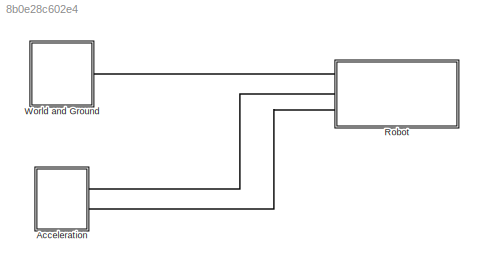
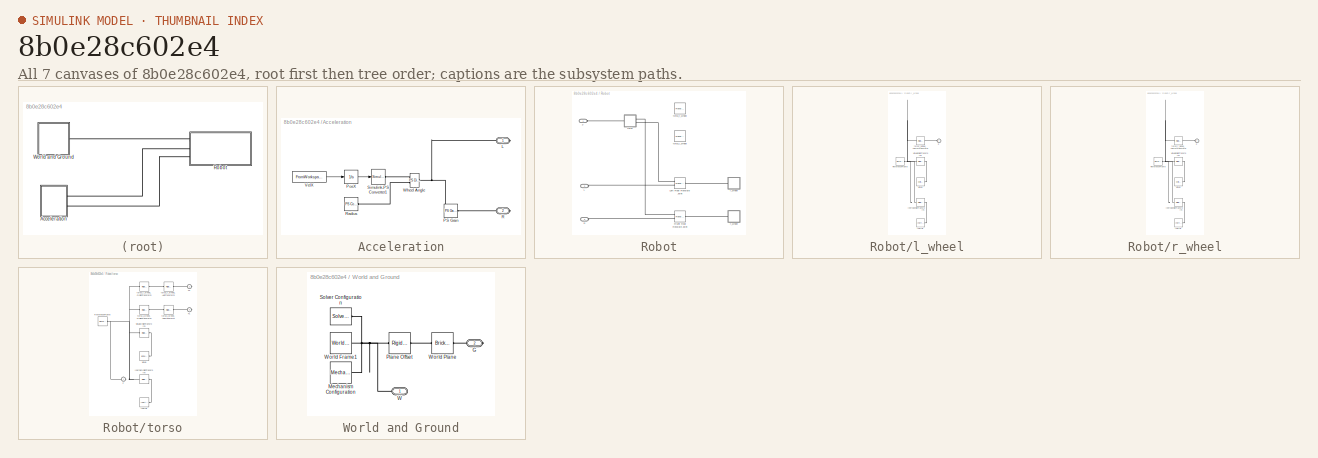
[diagram: thumbnail index - all 7 canvases of the model, root first then tree order]
MODEL slx_8b0e28c602e4
KIND model
CONFIG AbsTol = auto
CONFIG EnableMultiTasking = off
CONFIG FixedStep = auto
CONFIG MaxStep = auto
CONFIG MinStep = auto
CONFIG RelTol = 1e-3
CONFIG SampleTimeConstraint = Unconstrained
CONFIG Solver = VariableStepAuto
CONFIG SolverName = VariableStepAuto
CONFIG StartTime = 0.0
CONFIG StopTime = 10.0
BLOCK [SubSystem] Acceleration
  Ports = [0, 0, 0, 0, 0, 0, 2]
  RequestExecContextInheritance = off
BLOCK [PMIOPort] Acceleration/L
  Side = Right
BLOCK [Reference] Acceleration/PS Gain  REF=fl_ps_legacy_lib/Legacy Physical
Signals/Functions/PS Gain
  Ports = [0, 0, 0, 0, 0, 1, 1]
  SourceBlock = fl_ps_legacy_lib/Legacy Physical\nSignals/Functions/PS Gain
  SourceProductBaseCode = SS
  SourceType = PS Gain
BLOCK [Integrator] Acceleration/PosX
  InitialCondition = vehicle.posX_0
  Ports = [1, 1]
BLOCK [PMIOPort] Acceleration/R
  Port = 2
  Side = Right
BLOCK [Reference] Acceleration/Radius  REF=fl_lib/Physical Signals/Sources/PS Constant
  Ports = [0, 0, 0, 0, 0, 0, 1]
  SourceBlock = fl_lib/Physical Signals/Sources/PS Constant
  SourceProductBaseCode = SS
  SourceType = PS Constant
BLOCK [Reference] Acceleration/Simulink-PS Converter1  REF=nesl_utility/Simulink-PS
Converter
  Ports = [1, 0, 0, 0, 0, 0, 1]
  SourceBlock = nesl_utility/Simulink-PS\nConverter
  SourceProductBaseCode = SS
  SourceType = Simulink-PS\nConverter
BLOCK [FromWorkspace] Acceleration/VelX
  OutputAfterFinalValue = Holding final value
  VariableName = vehicle.velX
BLOCK [Reference] Acceleration/Wheel Angle  REF=fl_ps_legacy_lib/Legacy Physical
Signals/Functions/PS Divide
  Ports = [0, 0, 0, 0, 0, 2, 1]
  SourceBlock = fl_ps_legacy_lib/Legacy Physical\nSignals/Functions/PS Divide
  SourceProductBaseCode = SS
  SourceType = PS Divide
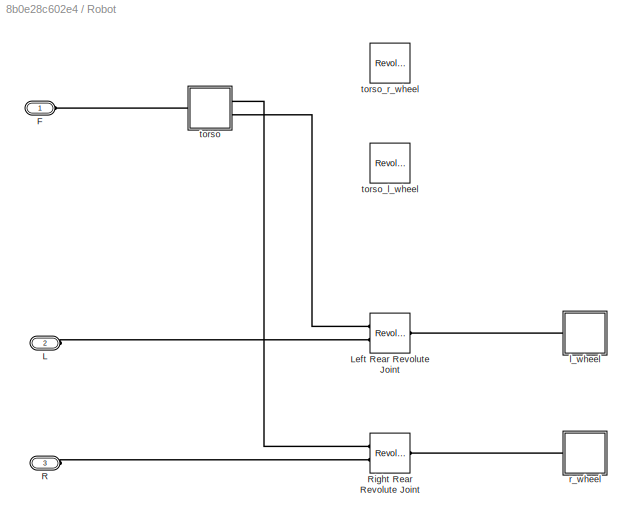
BLOCK [SubSystem] Robot
  Ports = [0, 0, 0, 0, 0, 3]
  RequestExecContextInheritance = off
BLOCK [PMIOPort] Robot/F
  Side = Left
BLOCK [PMIOPort] Robot/L
  Port = 2
  Side = Left
BLOCK [Reference] Robot/Left Rear Revolute Joint  REF=sm_lib/Joints/Revolute Joint
  Ports = [0, 0, 0, 0, 0, 2, 1]
  SourceBlock = sm_lib/Joints/Revolute Joint
  SourceProductBaseCode = MS
  SourceType = Revolute Joint
BLOCK [PMIOPort] Robot/R
  Port = 3
  Side = Left
BLOCK [Reference] Robot/Right Rear Revolute Joint  REF=sm_lib/Joints/Revolute Joint
  Ports = [0, 0, 0, 0, 0, 2, 1]
  SourceBlock = sm_lib/Joints/Revolute Joint
  SourceProductBaseCode = MS
  SourceType = Revolute Joint
BLOCK [SubSystem] Robot/l_wheel
  Ports = [0, 0, 0, 0, 0, 1]
  RequestExecContextInheritance = off
BLOCK [PMIOPort] Robot/l_wheel/F
  Side = Left
BLOCK [Reference] Robot/l_wheel/Inertia  REF=sm_lib/Body Elements/Inertia
  Ports = [0, 0, 0, 0, 0, 0, 1]
  SourceBlock = sm_lib/Body Elements/Inertia
  SourceProductBaseCode = MS
  SourceType = Inertia
BLOCK [Reference] Robot/l_wheel/InertiaOriginTransform  REF=sm_lib/Frames and
Transforms/Rigid
Transform
  Ports = [0, 0, 0, 0, 0, 1, 1]
  SourceBlock = sm_lib/Frames and\nTransforms/Rigid\nTransform
  SourceProductBaseCode = MS
  SourceType = Rigid\nTransform
BLOCK [Reference] Robot/l_wheel/ReferenceFrame  REF=sm_lib/Frames and
Transforms/Reference
Frame
  Ports = [0, 0, 0, 0, 0, 0, 1]
  SourceBlock = sm_lib/Frames and\nTransforms/Reference\nFrame
  SourceProductBaseCode = MS
  SourceType = Reference\nFrame
BLOCK [Reference] Robot/l_wheel/Visual  REF=sm_lib/Body Elements/Cylindrical Solid
  Ports = [0, 0, 0, 0, 0, 0, 1]
  SourceBlock = sm_lib/Body Elements/Cylindrical Solid
  SourceProductBaseCode = MS
  SourceType = Cylindrical Solid
BLOCK [Reference] Robot/l_wheel/VisualOriginTransform  REF=sm_lib/Frames and
Transforms/Rigid
Transform
  Ports = [0, 0, 0, 0, 0, 1, 1]
  SourceBlock = sm_lib/Frames and\nTransforms/Rigid\nTransform
  SourceProductBaseCode = MS
  SourceType = Rigid\nTransform
BLOCK [Reference] Robot/l_wheel/torso_l_wheel_AxisInvTransform  REF=sm_lib/Frames and
Transforms/Rigid
Transform
  Ports = [0, 0, 0, 0, 0, 1, 1]
  SourceBlock = sm_lib/Frames and\nTransforms/Rigid\nTransform
  SourceProductBaseCode = MS
  SourceType = Rigid\nTransform
BLOCK [SubSystem] Robot/r_wheel
  Ports = [0, 0, 0, 0, 0, 1]
  RequestExecContextInheritance = off
BLOCK [PMIOPort] Robot/r_wheel/F
  Side = Left
BLOCK [Reference] Robot/r_wheel/Inertia  REF=sm_lib/Body Elements/Inertia
  Ports = [0, 0, 0, 0, 0, 0, 1]
  SourceBlock = sm_lib/Body Elements/Inertia
  SourceProductBaseCode = MS
  SourceType = Inertia
BLOCK [Reference] Robot/r_wheel/InertiaOriginTransform  REF=sm_lib/Frames and
Transforms/Rigid
Transform
  Ports = [0, 0, 0, 0, 0, 1, 1]
  SourceBlock = sm_lib/Frames and\nTransforms/Rigid\nTransform
  SourceProductBaseCode = MS
  SourceType = Rigid\nTransform
BLOCK [Reference] Robot/r_wheel/ReferenceFrame  REF=sm_lib/Frames and
Transforms/Reference
Frame
  Ports = [0, 0, 0, 0, 0, 0, 1]
  SourceBlock = sm_lib/Frames and\nTransforms/Reference\nFrame
  SourceProductBaseCode = MS
  SourceType = Reference\nFrame
BLOCK [Reference] Robot/r_wheel/Visual  REF=sm_lib/Body Elements/Cylindrical Solid
  Ports = [0, 0, 0, 0, 0, 0, 1]
  SourceBlock = sm_lib/Body Elements/Cylindrical Solid
  SourceProductBaseCode = MS
  SourceType = Cylindrical Solid
BLOCK [Reference] Robot/r_wheel/VisualOriginTransform  REF=sm_lib/Frames and
Transforms/Rigid
Transform
  Ports = [0, 0, 0, 0, 0, 1, 1]
  SourceBlock = sm_lib/Frames and\nTransforms/Rigid\nTransform
  SourceProductBaseCode = MS
  SourceType = Rigid\nTransform
BLOCK [Reference] Robot/r_wheel/torso_r_wheel_AxisInvTransform  REF=sm_lib/Frames and
Transforms/Rigid
Transform
  Ports = [0, 0, 0, 0, 0, 1, 1]
  SourceBlock = sm_lib/Frames and\nTransforms/Rigid\nTransform
  SourceProductBaseCode = MS
  SourceType = Rigid\nTransform
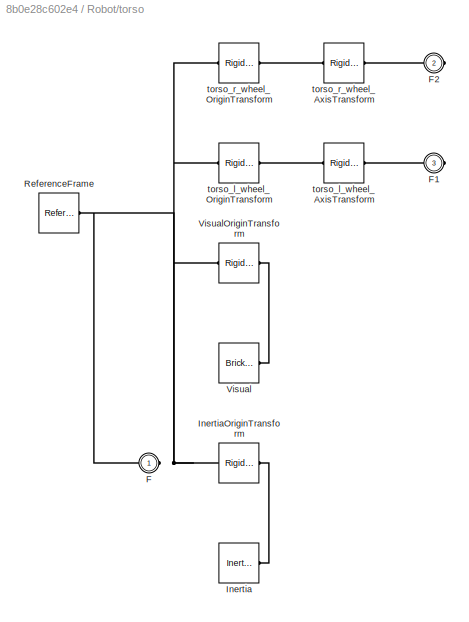
BLOCK [SubSystem] Robot/torso
  Ports = [0, 0, 0, 0, 0, 1, 2]
  RequestExecContextInheritance = off
BLOCK [PMIOPort] Robot/torso/F
  Side = Left
BLOCK [PMIOPort] Robot/torso/F1
  Port = 3
  Side = Right
BLOCK [PMIOPort] Robot/torso/F2
  Port = 2
  Side = Right
BLOCK [Reference] Robot/torso/Inertia  REF=sm_lib/Body Elements/Inertia
  Ports = [0, 0, 0, 0, 0, 0, 1]
  SourceBlock = sm_lib/Body Elements/Inertia
  SourceProductBaseCode = MS
  SourceType = Inertia
BLOCK [Reference] Robot/torso/InertiaOriginTransform  REF=sm_lib/Frames and
Transforms/Rigid
Transform
  Ports = [0, 0, 0, 0, 0, 1, 1]
  SourceBlock = sm_lib/Frames and\nTransforms/Rigid\nTransform
  SourceProductBaseCode = MS
  SourceType = Rigid\nTransform
BLOCK [Reference] Robot/torso/ReferenceFrame  REF=sm_lib/Frames and
Transforms/Reference
Frame
  Ports = [0, 0, 0, 0, 0, 0, 1]
  SourceBlock = sm_lib/Frames and\nTransforms/Reference\nFrame
  SourceProductBaseCode = MS
  SourceType = Reference\nFrame
BLOCK [Reference] Robot/torso/Visual  REF=sm_lib/Body Elements/Brick Solid
  Ports = [0, 0, 0, 0, 0, 0, 1]
  SourceBlock = sm_lib/Body Elements/Brick Solid
  SourceProductBaseCode = MS
  SourceType = Brick Solid
BLOCK [Reference] Robot/torso/VisualOriginTransform  REF=sm_lib/Frames and
Transforms/Rigid
Transform
  Ports = [0, 0, 0, 0, 0, 1, 1]
  SourceBlock = sm_lib/Frames and\nTransforms/Rigid\nTransform
  SourceProductBaseCode = MS
  SourceType = Rigid\nTransform
BLOCK [Reference] Robot/torso/torso_l_wheel_AxisTransform  REF=sm_lib/Frames and
Transforms/Rigid
Transform
  Ports = [0, 0, 0, 0, 0, 1, 1]
  SourceBlock = sm_lib/Frames and\nTransforms/Rigid\nTransform
  SourceProductBaseCode = MS
  SourceType = Rigid\nTransform
BLOCK [Reference] Robot/torso/torso_l_wheel_OriginTransform  REF=sm_lib/Frames and
Transforms/Rigid
Transform
  Ports = [0, 0, 0, 0, 0, 1, 1]
  SourceBlock = sm_lib/Frames and\nTransforms/Rigid\nTransform
  SourceProductBaseCode = MS
  SourceType = Rigid\nTransform
BLOCK [Reference] Robot/torso/torso_r_wheel_AxisTransform  REF=sm_lib/Frames and
Transforms/Rigid
Transform
  Ports = [0, 0, 0, 0, 0, 1, 1]
  SourceBlock = sm_lib/Frames and\nTransforms/Rigid\nTransform
  SourceProductBaseCode = MS
  SourceType = Rigid\nTransform
BLOCK [Reference] Robot/torso/torso_r_wheel_OriginTransform  REF=sm_lib/Frames and
Transforms/Rigid
Transform
  Ports = [0, 0, 0, 0, 0, 1, 1]
  SourceBlock = sm_lib/Frames and\nTransforms/Rigid\nTransform
  SourceProductBaseCode = MS
  SourceType = Rigid\nTransform
BLOCK [Reference] Robot/torso_l_wheel  REF=sm_lib/Joints/Revolute Joint
  Commented = on
  Ports = [0, 0, 0, 0, 0, 1, 1]
  SourceBlock = sm_lib/Joints/Revolute Joint
  SourceProductBaseCode = MS
  SourceType = Revolute Joint
BLOCK [Reference] Robot/torso_r_wheel  REF=sm_lib/Joints/Revolute Joint
  Commented = on
  Ports = [0, 0, 0, 0, 0, 1, 1]
  SourceBlock = sm_lib/Joints/Revolute Joint
  SourceProductBaseCode = MS
  SourceType = Revolute Joint
BLOCK [SubSystem] World and Ground
  Ports = [0, 0, 0, 0, 0, 1, 1]
  RequestExecContextInheritance = off
BLOCK [PMIOPort] World and Ground/G
  Port = 2
  Side = Right
BLOCK [Reference] World and Ground/Mechanism Configuration  REF=sm_lib/Utilities/Mechanism
Configuration
  Ports = [0, 0, 0, 0, 0, 0, 1]
  SourceBlock = sm_lib/Utilities/Mechanism\nConfiguration
  SourceProductBaseCode = MS
  SourceType = Mechanism\nConfiguration
BLOCK [Reference] World and Ground/Plane Offset  REF=sm_lib/Frames and
Transforms/Rigid
Transform
  Ports = [0, 0, 0, 0, 0, 1, 1]
  SourceBlock = sm_lib/Frames and\nTransforms/Rigid\nTransform
  SourceProductBaseCode = MS
  SourceType = Rigid\nTransform
BLOCK [Reference] World and Ground/Solver Configuration  REF=nesl_utility/Solver
Configuration
  Ports = [0, 0, 0, 0, 0, 0, 1]
  SourceBlock = nesl_utility/Solver\nConfiguration
  SourceProductBaseCode = MT,SS
  SourceType = Solver\nConfiguration
BLOCK [PMIOPort] World and Ground/W
  Side = Left
BLOCK [Reference] World and Ground/World Frame1  REF=sm_lib/Frames and
Transforms/World Frame
  Ports = [0, 0, 0, 0, 0, 0, 1]
  SourceBlock = sm_lib/Frames and\nTransforms/World Frame
  SourceProductBaseCode = MS
  SourceType = World Frame
BLOCK [Reference] World and Ground/World Plane  REF=sm_lib/Body Elements/Brick Solid
  Ports = [0, 0, 0, 0, 0, 1, 1]
  SourceBlock = sm_lib/Body Elements/Brick Solid
  SourceProductBaseCode = MS
  SourceType = Brick Solid
LINE Acceleration/PosX:1 -> Acceleration/Simulink-PS Converter1:1
LINE Acceleration/VelX:1 -> Acceleration/PosX:1
PNET net1: Acceleration/L:RConn1 -- Acceleration/PS Gain:LConn1 -- Acceleration/Wheel Angle:RConn1
PLINE Acceleration/PS Gain:RConn1 -- Acceleration/R:RConn1
PLINE Acceleration/Radius:RConn1 -- Acceleration/Wheel Angle:LConn2
PLINE Acceleration/Simulink-PS Converter1:RConn1 -- Acceleration/Wheel Angle:LConn1
PLINE Acceleration:RConn1 -- Robot:LConn2
PLINE Acceleration:RConn2 -- Robot:LConn3
PLINE Robot/F:RConn1 -- Robot/torso:LConn1
PLINE Robot/L:RConn1 -- Robot/Left Rear Revolute Joint:LConn2
PLINE Robot/Left Rear Revolute Joint:LConn1 -- Robot/torso:RConn2
PLINE Robot/Left Rear Revolute Joint:RConn1 -- Robot/l_wheel:LConn1
PLINE Robot/R:RConn1 -- Robot/Right Rear Revolute Joint:LConn2
PLINE Robot/Right Rear Revolute Joint:LConn1 -- Robot/torso:RConn1
PLINE Robot/Right Rear Revolute Joint:RConn1 -- Robot/r_wheel:LConn1
PLINE Robot/l_wheel/F:RConn1 -- Robot/l_wheel/torso_l_wheel_AxisInvTransform:RConn1
PLINE Robot/l_wheel/Inertia:RConn1 -- Robot/l_wheel/InertiaOriginTransform:RConn1
PNET net2: Robot/l_wheel/InertiaOriginTransform:LConn1 -- Robot/l_wheel/ReferenceFrame:RConn1 -- Robot/l_wheel/VisualOriginTransform:LConn1 -- Robot/l_wheel/torso_l_wheel_AxisInvTransform:LConn1
PLINE Robot/l_wheel/Visual:RConn1 -- Robot/l_wheel/VisualOriginTransform:RConn1
PLINE Robot/r_wheel/F:RConn1 -- Robot/r_wheel/torso_r_wheel_AxisInvTransform:RConn1
PLINE Robot/r_wheel/Inertia:RConn1 -- Robot/r_wheel/InertiaOriginTransform:RConn1
PNET net3: Robot/r_wheel/InertiaOriginTransform:LConn1 -- Robot/r_wheel/ReferenceFrame:RConn1 -- Robot/r_wheel/VisualOriginTransform:LConn1 -- Robot/r_wheel/torso_r_wheel_AxisInvTransform:LConn1
PLINE Robot/r_wheel/Visual:RConn1 -- Robot/r_wheel/VisualOriginTransform:RConn1
PLINE Robot/torso/F1:RConn1 -- Robot/torso/torso_l_wheel_AxisTransform:RConn1
PLINE Robot/torso/F2:RConn1 -- Robot/torso/torso_r_wheel_AxisTransform:RConn1
PNET net4: Robot/torso/F:RConn1 -- Robot/torso/InertiaOriginTransform:LConn1 -- Robot/torso/ReferenceFrame:RConn1 -- Robot/torso/VisualOriginTransform:LConn1 -- Robot/torso/torso_l_wheel_OriginTransform:LConn1 -- Robot/torso/torso_r_wheel_OriginTransform:LConn1
PLINE Robot/torso/Inertia:RConn1 -- Robot/torso/InertiaOriginTransform:RConn1
PLINE Robot/torso/Visual:RConn1 -- Robot/torso/VisualOriginTransform:RConn1
PLINE Robot/torso/torso_l_wheel_AxisTransform:LConn1 -- Robot/torso/torso_l_wheel_OriginTransform:RConn1
PLINE Robot/torso/torso_r_wheel_AxisTransform:LConn1 -- Robot/torso/torso_r_wheel_OriginTransform:RConn1
PLINE Robot:LConn1 -- World and Ground:LConn1
PLINE World and Ground/G:RConn1 -- World and Ground/World Plane:LConn1
PNET net5: World and Ground/Mechanism Configuration:RConn1 -- World and Ground/Plane Offset:LConn1 -- World and Ground/Solver Configuration:RConn1 -- World and Ground/W:RConn1 -- World and Ground/World Frame1:RConn1
PLINE World and Ground/Plane Offset:RConn1 -- World and Ground/World Plane:RConn1
note: PNET lines group multi-terminal physical nets as a canonical sorted terminal list (undirected conserving connections); 2-terminal nets keep the pairwise PLINE form
